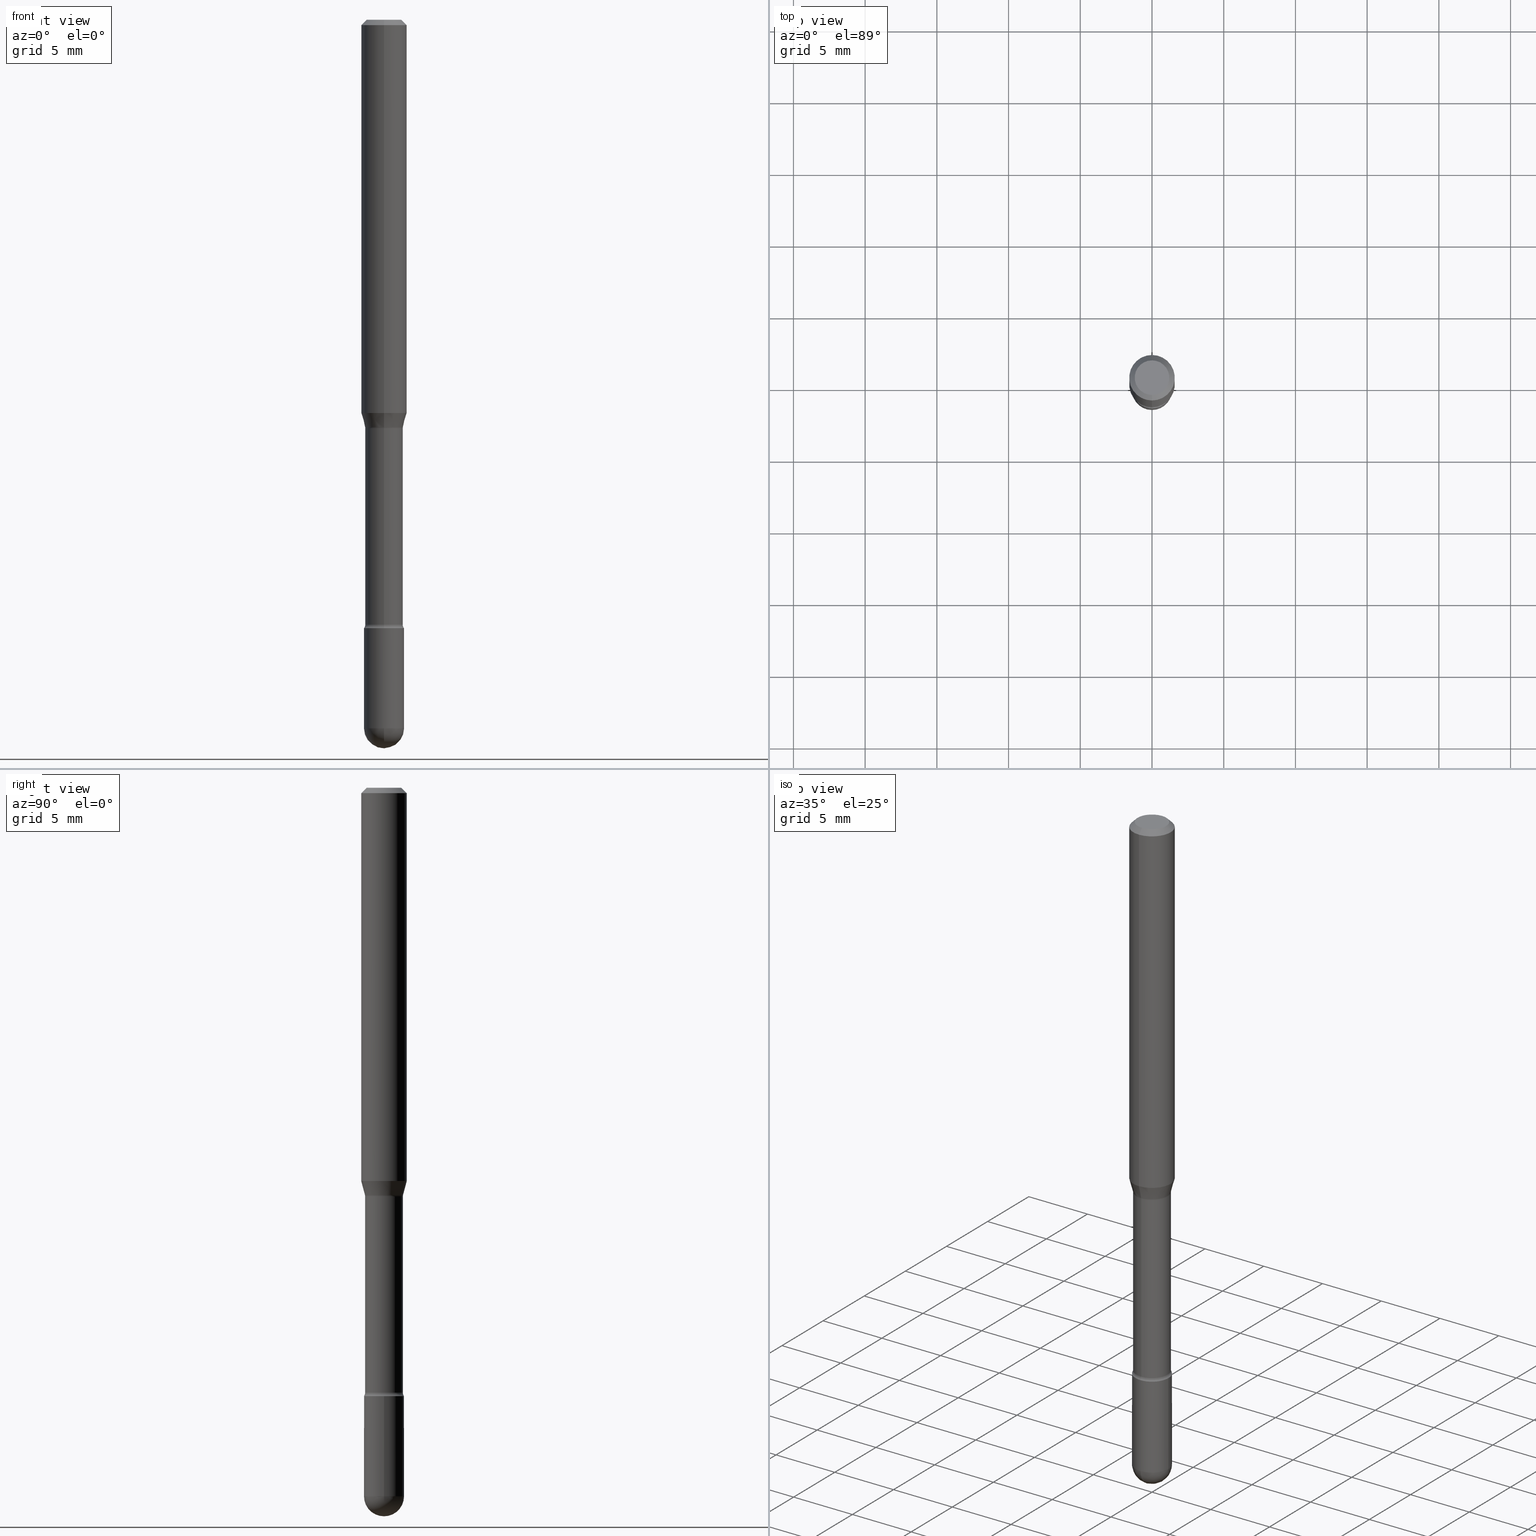
[diagram: canonical four-view strip — front | top / right | iso, engineering-drawing reading convention]
A machine part, canonical four-view strip (front | top / right | iso — engineering-drawing reading convention). The complete STEP part file that produces these views, byte-faithful:
ISO-10303-21;
HEADER;
FILE_DESCRIPTION (( 'STEP AP203' ),
    '1' );
FILE_NAME ('01608.STEP',
    '2024-04-09T20:09:02',
    ( '' ),
    ( '' ),
    'SwSTEP 2.0',
    'SolidWorks 2023',
    '' );
FILE_SCHEMA (( 'CONFIG_CONTROL_DESIGN' ));
ENDSEC;

DATA;
#1 = DIRECTION ( 'NONE',  ( 1.000000000000000000, -6.982962677686262766E-15, 0.000000000000000000 ) ) ;
#2 = DIRECTION ( 'NONE',  ( 1.000000000000000000, 0.000000000000000000, 0.000000000000000000 ) ) ;
#3 = CC_DESIGN_DATE_AND_TIME_ASSIGNMENT ( #237, #222, ( #188 ) ) ;
#4 = EDGE_CURVE ( 'NONE', #365, #81, #83, .T. ) ;
#5 = ORIENTED_EDGE ( 'NONE', *, *, #374, .F. ) ;
#6 = VECTOR ( 'NONE', #509, 39.37007874015748143 ) ;
#7 = APPLICATION_CONTEXT ( 'configuration controlled 3d designs of mechanical parts and assemblies' ) ;
#8 = APPROVAL_STATUS ( 'not_yet_approved' ) ;
#9 = DIRECTION ( 'NONE',  ( 1.000000000000000000, -6.982962677686262766E-15, 0.000000000000000000 ) ) ;
#10 = VERTEX_POINT ( 'NONE', #65 ) ;
#11 = AXIS2_PLACEMENT_3D ( 'NONE', #76, #375, #246 ) ;
#12 = PERSON_AND_ORGANIZATION_ROLE ( 'design_owner' ) ;
#13 = PERSON_AND_ORGANIZATION ( #191, #46 ) ;
#14 = ORIENTED_EDGE ( 'NONE', *, *, #391, .T. ) ;
#15 = CARTESIAN_POINT ( 'NONE',  ( 4.756436828030089694E-29, -6.790931204049916306E-15, -1.944999999999999618 ) ) ;
#16 = PERSON_AND_ORGANIZATION ( #191, #46 ) ;
#17 = DIRECTION ( 'NONE',  ( -6.982962677686265133E-15, -1.000000000000000000, 5.284038672464717026E-15 ) ) ;
#18 = ORIENTED_EDGE ( 'NONE', *, *, #391, .F. ) ;
#19 = COORDINATED_UNIVERSAL_TIME_OFFSET ( 5, 0, .BEHIND. ) ;
#20 = EDGE_LOOP ( 'NONE', ( #14, #486 ) ) ;
#21 = CIRCLE ( 'NONE', #79, 0.05221111260566397433 ) ;
#22 = DIRECTION ( 'NONE',  ( 6.982962677686265922E-15, 1.000000000000000000, -3.491634899894602075E-15 ) ) ;
#23 = ORIENTED_EDGE ( 'NONE', *, *, #286, .F. ) ;
#24 = CARTESIAN_POINT ( 'NONE',  ( -4.364351673553916201E-16, -0.06250000000000000000, 6.963005801346586436E-16 ) ) ;
#25 = ORIENTED_EDGE ( 'NONE', *, *, #451, .T. ) ;
#26 = ORIENTED_EDGE ( 'NONE', *, *, #444, .T. ) ;
#27 = AXIS2_PLACEMENT_3D ( 'NONE', #199, #249, #107 ) ;
#28 = EDGE_CURVE ( 'NONE', #503, #494, #262, .T. ) ;
#29 = FACE_OUTER_BOUND ( 'NONE', #97, .T. ) ;
#30 = ORIENTED_EDGE ( 'NONE', *, *, #504, .F. ) ;
#31 =( LENGTH_UNIT ( ) NAMED_UNIT ( * ) SI_UNIT ( $, .METRE. ) );
#32 = CYLINDRICAL_SURFACE ( 'NONE', #175, 0.05170000000000004453 ) ;
#33 = DIRECTION ( 'NONE',  ( -6.982962677686265922E-15, -1.000000000000000000, 3.483106191921935554E-15 ) ) ;
#34 = AXIS2_PLACEMENT_3D ( 'NONE', #507, #114, #252 ) ;
#35 = DIRECTION ( 'NONE',  ( 2.445361575076029644E-29, -3.491634899894602075E-15, -1.000000000000000000 ) ) ;
#36 = DIRECTION ( 'NONE',  ( -6.982962677686266711E-15, -1.000000000000000000, 4.966996352116842287E-15 ) ) ;
#37 = VERTEX_POINT ( 'NONE', #363 ) ;
#38 = DIRECTION ( 'NONE',  ( -1.000000000000000000, 7.105427357601001070E-15, -4.926315508542082329E-29 ) ) ;
#39 = MANIFOLD_SOLID_BREP ( 'Body-Move/Copy2[2]', #501 ) ;
#40 = CC_DESIGN_SECURITY_CLASSIFICATION ( #188, ( #429 ) ) ;
#41 = LINE ( 'NONE', #204, #326 ) ;
#42 = CARTESIAN_POINT ( 'NONE',  ( 4.756436828030090255E-29, -6.790931204049917095E-15, -1.944999999999999840 ) ) ;
#43 = CARTESIAN_POINT ( 'NONE',  ( 2.640241856761700178E-29, -3.769896732324770505E-15, -1.079693851278255678 ) ) ;
#44 = TOROIDAL_SURFACE ( 'NONE', #156, 0.06669999999999999540, 0.01499999999999998904 ) ;
#45 = FACE_OUTER_BOUND ( 'NONE', #177, .T. ) ;
#46 = ORGANIZATION ( 'UNSPECIFIED', 'UNSPECIFIED', '' ) ;
#47 = DIRECTION ( 'NONE',  ( -6.982962677686265922E-15, -1.000000000000000000, 3.483106191921935554E-15 ) ) ;
#48 = DATE_TIME_ROLE ( 'creation_date' ) ;
#49 = ORIENTED_EDGE ( 'NONE', *, *, #543, .F. ) ;
#50 = APPROVAL_ROLE ( '' ) ;
#51 = CYLINDRICAL_SURFACE ( 'NONE', #308, 0.06250000000000000000 ) ;
#52 = ORIENTED_EDGE ( 'NONE', *, *, #256, .F. ) ;
#53 = CIRCLE ( 'NONE', #214, 0.04749999999999999362 ) ;
#54 = PERSON_AND_ORGANIZATION_ROLE ( 'creator' ) ;
#55 = AXIS2_PLACEMENT_3D ( 'NONE', #479, #520, #2 ) ;
#56 = CARTESIAN_POINT ( 'NONE',  ( -1.169113584055446105E-44, 1.669184350826100908E-30, 4.780733988912460139E-16 ) ) ;
#57 = ORIENTED_EDGE ( 'NONE', *, *, #416, .F. ) ;
#58 = DIRECTION ( 'NONE',  ( -2.445361575076029644E-29, 3.491634899894602075E-15, 1.000000000000000000 ) ) ;
#59 = EDGE_LOOP ( 'NONE', ( #49, #26, #528, #23 ) ) ;
#60 = UNCERTAINTY_MEASURE_WITH_UNIT (LENGTH_MEASURE( 1.000000000000000082E-05 ), #453, 'distance_accuracy_value', 'NONE');
#61 = ORIENTED_EDGE ( 'NONE', *, *, #267, .F. ) ;
#62 = CARTESIAN_POINT ( 'NONE',  ( 3.790745495280543333E-16, 0.05169999999999428525, -1.660613307291703089 ) ) ;
#63 = CARTESIAN_POINT ( 'NONE',  ( 4.756436828030090255E-29, -6.790931204049917095E-15, -1.944999999999999840 ) ) ;
#64 = DIRECTION ( 'NONE',  ( -2.445361575076029644E-29, 3.491634899894602075E-15, 1.000000000000000000 ) ) ;
#65 = CARTESIAN_POINT ( 'NONE',  ( 0.05500000000000000028, -6.694915467231728877E-15, -1.944999999999999618 ) ) ;
#66 = VERTEX_POINT ( 'NONE', #369 ) ;
#67 = AXIS2_PLACEMENT_3D ( 'NONE', #243, #331, #498 ) ;
#68 = LINE ( 'NONE', #414, #228 ) ;
#69 = ORIENTED_EDGE ( 'NONE', *, *, #514, .T. ) ;
#70 = CIRCLE ( 'NONE', #135, 0.05500000000000000028 ) ;
#71 = EDGE_CURVE ( 'NONE', #86, #134, #99, .T. ) ;
#72 = CARTESIAN_POINT ( 'NONE',  ( 4.440892098500625669E-16, 0.06250000000000000000, 2.598462176478334336E-16 ) ) ;
#73 = LINE ( 'NONE', #418, #390 ) ;
#74 = VERTEX_POINT ( 'NONE', #490 ) ;
#75 = CC_DESIGN_PERSON_AND_ORGANIZATION_ASSIGNMENT ( #387, #167, ( #434 ) ) ;
#76 = CARTESIAN_POINT ( 'NONE',  ( 2.640241856761700178E-29, -3.769896732324770505E-15, -1.079693851278255678 ) ) ;
#77 = DIRECTION ( 'NONE',  ( -6.982962677686265133E-15, -1.000000000000000000, 3.491634899894601680E-15 ) ) ;
#78 = VERTEX_POINT ( 'NONE', #98 ) ;
#79 = AXIS2_PLACEMENT_3D ( 'NONE', #559, #162, #164 ) ;
#80 = DIRECTION ( 'NONE',  ( -6.982962677686265922E-15, -1.000000000000000000, 3.491634899894602075E-15 ) ) ;
#81 = VERTEX_POINT ( 'NONE', #282 ) ;
#82 = FACE_OUTER_BOUND ( 'NONE', #287, .T. ) ;
#83 = CIRCLE ( 'NONE', #532, 0.01499999999999997689 ) ;
#84 = DIRECTION ( 'NONE',  ( -2.445361575076029644E-29, 3.491634899894602075E-15, 1.000000000000000000 ) ) ;
#85 = DIRECTION ( 'NONE',  ( -2.445468806185136597E-29, 3.491481338843145583E-15, 1.000000000000000000 ) ) ;
#86 = VERTEX_POINT ( 'NONE', #62 ) ;
#87 = ADVANCED_FACE ( 'NONE', ( #540 ), #142, .T. ) ;
#88 = EDGE_LOOP ( 'NONE', ( #310, #332, #25, #279 ) ) ;
#89 = ADVANCED_FACE ( 'NONE', ( #82 ), #161, .T. ) ;
#90 = PRODUCT_DEFINITION_SHAPE ( 'NONE', 'NONE',  #434 ) ;
#91 = DIRECTION ( 'NONE',  ( -2.445468806185136877E-29, 3.491481338843145188E-15, 1.000000000000000000 ) ) ;
#92 = ORIENTED_EDGE ( 'NONE', *, *, #4, .F. ) ;
#93 = CARTESIAN_POINT ( 'NONE',  ( -4.287811248607203282E-16, -0.06250000000000005551, -0.01499999999999986587 ) ) ;
#94 = AXIS2_PLACEMENT_3D ( 'NONE', #393, #171, #47 ) ;
#95 = ORIENTED_EDGE ( 'NONE', *, *, #315, .F. ) ;
#96 = FACE_OUTER_BOUND ( 'NONE', #415, .T. ) ;
#97 = EDGE_LOOP ( 'NONE', ( #193, #480, #276, #254 ) ) ;
#98 = CARTESIAN_POINT ( 'NONE',  ( -3.907985046680076246E-16, -0.05500000000000680733, -1.944999999999999396 ) ) ;
#99 = CIRCLE ( 'NONE', #335, 0.01499999999999997689 ) ;
#100 = ADVANCED_FACE ( 'NONE', ( #425 ), #281, .T. ) ;
#101 = DIRECTION ( 'NONE',  ( 1.000000000000000000, -6.982962677686262766E-15, 0.000000000000000000 ) ) ;
#102 = AXIS2_PLACEMENT_3D ( 'NONE', #306, #270, #396 ) ;
#103 = ORIENTED_EDGE ( 'NONE', *, *, #242, .T. ) ;
#104 = CC_DESIGN_APPROVAL ( #377, ( #434 ) ) ;
#105 = DIRECTION ( 'NONE',  ( -2.445361575076029644E-29, 3.491634899894602075E-15, 1.000000000000000000 ) ) ;
#106 = ORIENTED_EDGE ( 'NONE', *, *, #352, .F. ) ;
#107 = DIRECTION ( 'NONE',  ( 6.982962677686266711E-15, 1.000000000000000000, -4.966996352116838343E-15 ) ) ;
#108 = VERTEX_POINT ( 'NONE', #116 ) ;
#109 = CARTESIAN_POINT ( 'NONE',  ( -3.773273898774340269E-16, -0.04749999999999999362, 8.311291982339236009E-17 ) ) ;
#110 = ORIENTED_EDGE ( 'NONE', *, *, #28, .F. ) ;
#111 = CIRCLE ( 'NONE', #137, 0.05170000000000008616 ) ;
#112 = AXIS2_PLACEMENT_3D ( 'NONE', #152, #557, #340 ) ;
#113 = DIRECTION ( 'NONE',  ( -2.445361575076029644E-29, 3.491634899894602075E-15, 1.000000000000000000 ) ) ;
#114 = DIRECTION ( 'NONE',  ( -2.445361575076029644E-29, 3.491634899894602075E-15, 1.000000000000000000 ) ) ;
#115 = CARTESIAN_POINT ( 'NONE',  ( 3.907985046680957798E-16, 0.05499999999999415773, -1.670000000000000151 ) ) ;
#116 = CARTESIAN_POINT ( 'NONE',  ( -3.610191704363525413E-16, -0.05170000000000391643, -1.121974787463810408 ) ) ;
#117 = EDGE_LOOP ( 'NONE', ( #197, #194, #110, #183 ) ) ;
#118 = VECTOR ( 'NONE', #64, 39.37007874015748143 ) ;
#119 = APPROVAL_PERSON_ORGANIZATION ( #432, #377, #227 ) ;
#120 = DIRECTION ( 'NONE',  ( -2.445361575076029644E-29, 3.491634899894602075E-15, 1.000000000000000000 ) ) ;
#121 = EDGE_CURVE ( 'NONE', #365, #108, #337, .T. ) ;
#122 = DIRECTION ( 'NONE',  ( 1.000000000000000000, -6.982962677686266711E-15, 4.876176775795935793E-29 ) ) ;
#123 = ORIENTED_EDGE ( 'NONE', *, *, #121, .F. ) ;
#124 = CIRCLE ( 'NONE', #448, 0.05169999999999999596 ) ;
#125 = APPLICATION_PROTOCOL_DEFINITION ( 'international standard', 'config_control_design', 1994, #338 ) ;
#126 = AXIS2_PLACEMENT_3D ( 'NONE', #251, #499, #291 ) ;
#127 = CARTESIAN_POINT ( 'NONE',  ( 0.05500000000000000028, -3.840629472727446888E-16, 2.681897226687764826E-30 ) ) ;
#128 = EDGE_LOOP ( 'NONE', ( #106, #523, #537, #431 ) ) ;
#129 = CARTESIAN_POINT ( 'NONE',  ( -3.645882506857991305E-16, -0.05221111260566788093, -1.118092501787272708 ) ) ;
#130 = ORIENTED_EDGE ( 'NONE', *, *, #441, .F. ) ;
#131 = APPROVAL_ROLE ( '' ) ;
#132 = TOROIDAL_SURFACE ( 'NONE', #263, 0.06670000000000006479, 0.01499999999999997863 ) ;
#133 = DIRECTION ( 'NONE',  ( -2.445361575076029644E-29, 3.491634899894602075E-15, 1.000000000000000000 ) ) ;
#134 = VERTEX_POINT ( 'NONE', #115 ) ;
#135 = AXIS2_PLACEMENT_3D ( 'NONE', #231, #85, #9 ) ;
#136 = PERSON_AND_ORGANIZATION_ROLE ( 'classification_officer' ) ;
#137 = AXIS2_PLACEMENT_3D ( 'NONE', #409, #105, #545 ) ;
#138 = FACE_OUTER_BOUND ( 'NONE', #128, .T. ) ;
#139 = EDGE_LOOP ( 'NONE', ( #103, #477, #130, #238 ) ) ;
#140 = CARTESIAN_POINT ( 'NONE',  ( 4.739320047520278121E-16, 0.06669999999999426388, -1.660613307291703089 ) ) ;
#141 = FACE_OUTER_BOUND ( 'NONE', #397, .T. ) ;
#142 = CYLINDRICAL_SURFACE ( 'NONE', #67, 0.06250000000000000000 ) ;
#143 = CLOSED_SHELL ( 'NONE', ( #89, #466, #405, #392, #149 ) ) ;
#144 = EDGE_CURVE ( 'NONE', #81, #134, #223, .T. ) ;
#145 = DIRECTION ( 'NONE',  ( 1.000000000000000000, -6.982962677686262766E-15, 0.000000000000000000 ) ) ;
#146 = AXIS2_PLACEMENT_3D ( 'NONE', #471, #346, #1 ) ;
#147 = DIRECTION ( 'NONE',  ( 1.000000000000000000, -7.105427357601001070E-15, 4.926317389122583750E-29 ) ) ;
#148 = VECTOR ( 'NONE', #241, 39.37007874015748143 ) ;
#149 = ADVANCED_FACE ( 'NONE', ( #427 ), #555, .T. ) ;
#150 = ORIENTED_EDGE ( 'NONE', *, *, #519, .T. ) ;
#151 = CC_DESIGN_PERSON_AND_ORGANIZATION_ASSIGNMENT ( #13, #54, ( #429 ) ) ;
#152 = CARTESIAN_POINT ( 'NONE',  ( 2.743754344068947711E-29, -3.917354033082399546E-15, -1.121974787463810630 ) ) ;
#153 = ADVANCED_FACE ( 'NONE', ( #45 ), #380, .F. ) ;
#154 = DIRECTION ( 'NONE',  ( -1.807323732225318306E-15, -0.2588190451025164651, 0.9659258262890694224 ) ) ;
#155 = VERTEX_POINT ( 'NONE', #464 ) ;
#156 = AXIS2_PLACEMENT_3D ( 'NONE', #420, #341, #344 ) ;
#157 = PLANE ( 'NONE',  #554 ) ;
#158 = DIRECTION ( 'NONE',  ( -2.445468806185136597E-29, 3.491481338843145583E-15, 1.000000000000000000 ) ) ;
#159 = CIRCLE ( 'NONE', #317, 0.05500000000000000028 ) ;
#160 = AXIS2_PLACEMENT_3D ( 'NONE', #360, #233, #400 ) ;
#161 = CYLINDRICAL_SURFACE ( 'NONE', #290, 0.05500000000000000028 ) ;
#162 = DIRECTION ( 'NONE',  ( -2.445361575076029644E-29, 3.491634899894602075E-15, 1.000000000000000000 ) ) ;
#163 = DIRECTION ( 'NONE',  ( -2.445361575076029644E-29, 3.491634899894602075E-15, 1.000000000000000000 ) ) ;
#164 = DIRECTION ( 'NONE',  ( -6.982962677686266711E-15, -1.000000000000000000, 2.616155696869698836E-15 ) ) ;
#165 = CARTESIAN_POINT ( 'NONE',  ( 2.734140441251224766E-29, -3.903970800550909754E-15, -1.118092501787272930 ) ) ;
#166 = VECTOR ( 'NONE', #538, 39.37007874015748143 ) ;
#167 = PERSON_AND_ORGANIZATION_ROLE ( 'creator' ) ;
#168 = ADVANCED_FACE ( 'NONE', ( #303 ), #403, .T. ) ;
#169 = FACE_OUTER_BOUND ( 'NONE', #456, .T. ) ;
#170 = APPROVAL ( #529, 'UNSPECIFIED' ) ;
#171 = DIRECTION ( 'NONE',  ( -2.445361575076029644E-29, 3.491634899894602075E-15, 1.000000000000000000 ) ) ;
#172 = AXIS2_PLACEMENT_3D ( 'NONE', #424, #213, #80 ) ;
#173 = ORIENTED_EDGE ( 'NONE', *, *, #205, .F. ) ;
#174 = APPROVAL_DATE_TIME ( #314, #170 ) ;
#175 = AXIS2_PLACEMENT_3D ( 'NONE', #548, #113, #378 ) ;
#176 = ADVANCED_FACE ( 'NONE', ( #467 ), #348, .F. ) ;
#177 = EDGE_LOOP ( 'NONE', ( #247, #521 ) ) ;
#178 = PRODUCT ( '01608', '01608', '', ( #216 ) ) ;
#179 = ADVANCED_FACE ( 'NONE', ( #169 ), #44, .F. ) ;
#180 = COORDINATED_UNIVERSAL_TIME_OFFSET ( 5, 0, .BEHIND. ) ;
#181 = PERSON_AND_ORGANIZATION_ROLE ( 'design_supplier' ) ;
#182 = CARTESIAN_POINT ( 'NONE',  ( -4.364351673553652919E-16, -0.06250000000000377476, -1.079693851278255456 ) ) ;
#183 = ORIENTED_EDGE ( 'NONE', *, *, #488, .F. ) ;
#184 = AXIS2_PLACEMENT_3D ( 'NONE', #43, #84, #210 ) ;
#185 = EDGE_LOOP ( 'NONE', ( #373, #549, #411, #52 ) ) ;
#186 = CARTESIAN_POINT ( 'NONE',  ( -4.364351673553912750E-16, -0.06250000000000005551, -0.01499999999999986587 ) ) ;
#187 = ADVANCED_FACE ( 'NONE', ( #562 ), #255, .T. ) ;
#188 = SECURITY_CLASSIFICATION ( '', '', #438 ) ;
#189 = FACE_OUTER_BOUND ( 'NONE', #20, .T. ) ;
#190 = ORIENTED_EDGE ( 'NONE', *, *, #225, .F. ) ;
#191 = PERSON ( 'UNSPECIFIED', 'UNSPECIFIED', 'UNSPECIFIED', ('UNSPECIFIED'), ('UNSPECIFIED'), ('UNSPECIFIED') ) ;
#192 = CARTESIAN_POINT ( 'NONE',  ( -3.610191704363399195E-16, -0.05170000000000588014, -1.660613307291702645 ) ) ;
#193 = ORIENTED_EDGE ( 'NONE', *, *, #384, .F. ) ;
#194 = ORIENTED_EDGE ( 'NONE', *, *, #560, .T. ) ;
#195 = AXIS2_PLACEMENT_3D ( 'NONE', #446, #541, #33 ) ;
#196 = EDGE_CURVE ( 'NONE', #155, #328, #386, .T. ) ;
#197 = ORIENTED_EDGE ( 'NONE', *, *, #441, .T. ) ;
#198 = CIRCLE ( 'NONE', #230, 0.05500000000000000028 ) ;
#199 = CARTESIAN_POINT ( 'NONE',  ( 4.756436828030090255E-29, -6.790931204049917095E-15, -1.944999999999999840 ) ) ;
#200 = ORIENTED_EDGE ( 'NONE', *, *, #267, .T. ) ;
#201 = DIRECTION ( 'NONE',  ( -6.982962677686265133E-15, -1.000000000000000000, 3.491634899894602469E-15 ) ) ;
#202 = CARTESIAN_POINT ( 'NONE',  ( 4.756436828030090255E-29, -6.790931204049917095E-15, -1.944999999999999840 ) ) ;
#203 = DIMENSIONAL_EXPONENTS ( 1.000000000000000000, 0.000000000000000000, 0.000000000000000000, 0.000000000000000000, 0.000000000000000000, 0.000000000000000000, 0.000000000000000000 ) ;
#204 = CARTESIAN_POINT ( 'NONE',  ( -0.05500000000000000028, 3.907985046680551042E-16, -2.705414299640198362E-30 ) ) ;
#205 = EDGE_CURVE ( 'NONE', #354, #268, #41, .T. ) ;
#206 = DIRECTION ( 'NONE',  ( -7.105427357601001070E-15, -1.000000000000000000, 0.000000000000000000 ) ) ;
#207 = CC_DESIGN_APPROVAL ( #350, ( #188 ) ) ;
#208 =( NAMED_UNIT ( * ) PLANE_ANGLE_UNIT ( ) SI_UNIT ( $, .RADIAN. ) );
#209 = DESIGN_CONTEXT ( 'detailed design', #338, 'design' ) ;
#210 = DIRECTION ( 'NONE',  ( -6.982962677686265922E-15, -1.000000000000000000, 4.370956789862821150E-15 ) ) ;
#211 = ADVANCED_FACE ( 'NONE', ( #264 ), #132, .F. ) ;
#212 = APPROVAL_DATE_TIME ( #426, #377 ) ;
#213 = DIRECTION ( 'NONE',  ( -2.445361575076029644E-29, 3.491634899894602075E-15, 1.000000000000000000 ) ) ;
#214 = AXIS2_PLACEMENT_3D ( 'NONE', #534, #364, #539 ) ;
#215 = AXIS2_PLACEMENT_3D ( 'NONE', #15, #465, #253 ) ;
#216 = MECHANICAL_CONTEXT ( 'NONE', #7, 'mechanical' ) ;
#217 = CARTESIAN_POINT ( 'NONE',  ( 4.075357388645938693E-16, 0.05221111260566007467, -1.118092501787272930 ) ) ;
#218 = CARTESIAN_POINT ( 'NONE',  ( 3.840629472727447874E-16, 0.04749999999999999362, -2.485923956665948360E-16 ) ) ;
#219 = ADVANCED_BREP_SHAPE_REPRESENTATION ( '01608', ( #408, #39, #55 ), #544 ) ;
#220 = CARTESIAN_POINT ( 'NONE',  ( -0.05500000000000000028, -5.920054015290930021E-15, -1.669999999999999929 ) ) ;
#221 = ORIENTED_EDGE ( 'NONE', *, *, #525, .T. ) ;
#222 = DATE_TIME_ROLE ( 'classification_date' ) ;
#223 = CIRCLE ( 'NONE', #34, 0.05500000000000000028 ) ;
#224 = DIRECTION ( 'NONE',  ( -2.445361575076029644E-29, 3.491634899894602075E-15, 1.000000000000000000 ) ) ;
#225 = EDGE_CURVE ( 'NONE', #376, #66, #474, .T. ) ;
#226 = EDGE_LOOP ( 'NONE', ( #240, #307, #535, #489 ) ) ;
#227 = APPROVAL_ROLE ( '' ) ;
#228 = VECTOR ( 'NONE', #154, 39.37007874015748143 ) ;
#229 = APPROVAL_DATE_TIME ( #395, #350 ) ;
#230 = AXIS2_PLACEMENT_3D ( 'NONE', #367, #324, #145 ) ;
#231 = CARTESIAN_POINT ( 'NONE',  ( 4.756436828030089694E-29, -6.790931204049916306E-15, -1.944999999999999618 ) ) ;
#232 = ORIENTED_EDGE ( 'NONE', *, *, #242, .F. ) ;
#233 = DIRECTION ( 'NONE',  ( -2.445361575076029644E-29, 3.491634899894602075E-15, 1.000000000000000000 ) ) ;
#234 = DIRECTION ( 'NONE',  ( -6.982962677686266711E-15, -1.000000000000000000, 3.491634899894602863E-15 ) ) ;
#235 = ORIENTED_EDGE ( 'NONE', *, *, #366, .F. ) ;
#236 = CARTESIAN_POINT ( 'NONE',  ( 4.440892098500891416E-16, 0.06249999999999995143, -0.01500000000000030129 ) ) ;
#237 = DATE_AND_TIME ( #356, #283 ) ;
#238 = ORIENTED_EDGE ( 'NONE', *, *, #451, .F. ) ;
#239 = LOCAL_TIME ( 16, 9, 2.000000000000000000, #401 ) ;
#240 = ORIENTED_EDGE ( 'NONE', *, *, #71, .F. ) ;
#241 = DIRECTION ( 'NONE',  ( -4.851104656540964275E-15, -0.7071067811865500152, -0.7071067811865450192 ) ) ;
#242 = EDGE_CURVE ( 'NONE', #273, #250, #564, .T. ) ;
#243 = CARTESIAN_POINT ( 'NONE',  ( -1.169113584055446105E-44, 1.669184350826100908E-30, 4.780733988912460139E-16 ) ) ;
#244 = ORIENTED_EDGE ( 'NONE', *, *, #286, .T. ) ;
#245 = EDGE_CURVE ( 'NONE', #66, #354, #553, .T. ) ;
#246 = DIRECTION ( 'NONE',  ( -6.982962677686265922E-15, -1.000000000000000000, 4.370956789862821150E-15 ) ) ;
#247 = ORIENTED_EDGE ( 'NONE', *, *, #144, .F. ) ;
#248 = AXIS2_PLACEMENT_3D ( 'NONE', #63, #491, #312 ) ;
#249 = DIRECTION ( 'NONE',  ( -1.000000000000000000, 6.982962677686266711E-15, -4.883557194083112901E-29 ) ) ;
#250 = VERTEX_POINT ( 'NONE', #217 ) ;
#251 = CARTESIAN_POINT ( 'NONE',  ( 4.739320047520142042E-16, 0.06669999999999608187, -1.121974787463811074 ) ) ;
#252 = DIRECTION ( 'NONE',  ( -6.982962677686266711E-15, -1.000000000000000000, 4.966996352116842287E-15 ) ) ;
#253 = DIRECTION ( 'NONE',  ( 1.000000000000000000, -6.982962677686262766E-15, 0.000000000000000000 ) ) ;
#254 = ORIENTED_EDGE ( 'NONE', *, *, #347, .F. ) ;
#255 = CONICAL_SURFACE ( 'NONE', #473, 0.06250000000000000000, 0.7853981633974483900 ) ;
#256 = EDGE_CURVE ( 'NONE', #494, #503, #495, .T. ) ;
#257 = DIRECTION ( 'NONE',  ( 6.982962677686265922E-15, 1.000000000000000000, -3.483106191921935554E-15 ) ) ;
#258 = CIRCLE ( 'NONE', #458, 0.05500000000000004191 ) ;
#259 = DIRECTION ( 'NONE',  ( -6.982962677686265922E-15, -1.000000000000000000, 3.491634899894601286E-15 ) ) ;
#260 = CARTESIAN_POINT ( 'NONE',  ( 0.000000000000000000, 0.000000000000000000, 0.000000000000000000 ) ) ;
#261 = CARTESIAN_POINT ( 'NONE',  ( -3.610191704363802007E-16, -0.05170000000000004453, 6.585909232157971509E-16 ) ) ;
#262 = CIRCLE ( 'NONE', #195, 0.06250000000000000000 ) ;
#263 = AXIS2_PLACEMENT_3D ( 'NONE', #512, #300, #428 ) ;
#264 = FACE_OUTER_BOUND ( 'NONE', #226, .T. ) ;
#265 = AXIS2_PLACEMENT_3D ( 'NONE', #558, #469, #385 ) ;
#266 = CARTESIAN_POINT ( 'NONE',  ( 4.083932906329177803E-29, -5.830773835868053056E-15, -1.669999999999999929 ) ) ;
#267 = EDGE_CURVE ( 'NONE', #268, #74, #159, .T. ) ;
#268 = VERTEX_POINT ( 'NONE', #220 ) ;
#269 = CALENDAR_DATE ( 2024, 9, 4 ) ;
#270 = DIRECTION ( 'NONE',  ( -1.000000000000000000, 6.982962677686265922E-15, -4.883557194083112340E-29 ) ) ;
#271 = ORIENTED_EDGE ( 'NONE', *, *, #315, .T. ) ;
#272 = APPROVAL_STATUS ( 'not_yet_approved' ) ;
#273 = VERTEX_POINT ( 'NONE', #129 ) ;
#274 = DIRECTION ( 'NONE',  ( 2.445361575076029644E-29, -3.491634899894602075E-15, -1.000000000000000000 ) ) ;
#275 = COORDINATED_UNIVERSAL_TIME_OFFSET ( 5, 0, .BEHIND. ) ;
#276 = ORIENTED_EDGE ( 'NONE', *, *, #121, .T. ) ;
#277 = EDGE_CURVE ( 'NONE', #10, #74, #482, .T. ) ;
#278 = LINE ( 'NONE', #327, #118 ) ;
#279 = ORIENTED_EDGE ( 'NONE', *, *, #196, .F. ) ;
#280 = LINE ( 'NONE', #24, #166 ) ;
#281 = CONICAL_SURFACE ( 'NONE', #297, 0.05221111260566397433, 0.2617993877991485197 ) ;
#282 = CARTESIAN_POINT ( 'NONE',  ( -3.840629472727037666E-16, -0.05500000000000581507, -1.669999999999999707 ) ) ;
#283 = LOCAL_TIME ( 16, 9, 2.000000000000000000, #19 ) ;
#284 = DIRECTION ( 'NONE',  ( -2.445361575076029644E-29, 3.491634899894602075E-15, 1.000000000000000000 ) ) ;
#285 = DIRECTION ( 'NONE',  ( -6.982962677686270655E-15, -1.000000000000000000, 0.000000000000000000 ) ) ;
#286 = EDGE_CURVE ( 'NONE', #273, #108, #522, .T. ) ;
#287 = EDGE_LOOP ( 'NONE', ( #358, #433, #323, #289, #531 ) ) ;
#288 = DIRECTION ( 'NONE',  ( 1.000000000000000000, -6.982962677686265922E-15, 4.876176775795935793E-29 ) ) ;
#289 = ORIENTED_EDGE ( 'NONE', *, *, #277, .F. ) ;
#290 = AXIS2_PLACEMENT_3D ( 'NONE', #260, #158, #516 ) ;
#291 = DIRECTION ( 'NONE',  ( 7.105427357601001859E-15, 1.000000000000000000, 0.000000000000000000 ) ) ;
#292 = ORIENTED_EDGE ( 'NONE', *, *, #526, .T. ) ;
#293 = DIRECTION ( 'NONE',  ( -2.438088387897960049E-29, 3.491481338843145188E-15, 1.000000000000000000 ) ) ;
#294 = CARTESIAN_POINT ( 'NONE',  ( 0.000000000000000000, 0.000000000000000000, 0.000000000000000000 ) ) ;
#295 = DIRECTION ( 'NONE',  ( -2.445361575076029644E-29, 3.491634899894602075E-15, 1.000000000000000000 ) ) ;
#296 = DIRECTION ( 'NONE',  ( -2.445361575076029644E-29, 3.491634899894602075E-15, 1.000000000000000000 ) ) ;
#297 = AXIS2_PLACEMENT_3D ( 'NONE', #518, #120, #339 ) ;
#298 = DIRECTION ( 'NONE',  ( 1.839019923739588088E-15, 0.2588190451025232375, 0.9659258262890676461 ) ) ;
#299 = AXIS2_PLACEMENT_3D ( 'NONE', #322, #445, #22 ) ;
#300 = DIRECTION ( 'NONE',  ( -2.445361575076029644E-29, 3.491634899894602075E-15, 1.000000000000000000 ) ) ;
#301 = AXIS2_PLACEMENT_3D ( 'NONE', #336, #455, #201 ) ;
#302 = DIRECTION ( 'NONE',  ( -2.445468806185136877E-29, 3.491481338843145188E-15, 1.000000000000000000 ) ) ;
#303 = FACE_OUTER_BOUND ( 'NONE', #88, .T. ) ;
#304 = ADVANCED_FACE ( 'NONE', ( #476 ), #51, .T. ) ;
#305 = SHAPE_DEFINITION_REPRESENTATION ( #90, #219 ) ;
#306 = CARTESIAN_POINT ( 'NONE',  ( -4.657636106016465025E-16, -0.06670000000000392282, -1.121974787463810408 ) ) ;
#307 = ORIENTED_EDGE ( 'NONE', *, *, #389, .F. ) ;
#308 = AXIS2_PLACEMENT_3D ( 'NONE', #56, #224, #259 ) ;
#309 = CALENDAR_DATE ( 2024, 9, 4 ) ;
#310 = ORIENTED_EDGE ( 'NONE', *, *, #355, .F. ) ;
#311 = ORIENTED_EDGE ( 'NONE', *, *, #444, .F. ) ;
#312 = DIRECTION ( 'NONE',  ( 6.982962677686266711E-15, 1.000000000000000000, -4.966996352116838343E-15 ) ) ;
#313 = AXIS2_PLACEMENT_3D ( 'NONE', #165, #295, #388 ) ;
#314 = DATE_AND_TIME ( #269, #478 ) ;
#315 = EDGE_CURVE ( 'NONE', #354, #78, #70, .T. ) ;
#316 = ORIENTED_EDGE ( 'NONE', *, *, #389, .T. ) ;
#317 = AXIS2_PLACEMENT_3D ( 'NONE', #266, #481, #484 ) ;
#318 = LINE ( 'NONE', #93, #148 ) ;
#319 = AXIS2_PLACEMENT_3D ( 'NONE', #333, #502, #101 ) ;
#320 = SPHERICAL_SURFACE ( 'NONE', #248, 0.05500000000000004191 ) ;
#321 = CALENDAR_DATE ( 2024, 9, 4 ) ;
#322 = CARTESIAN_POINT ( 'NONE',  ( 3.316907271900976096E-16, 0.04749999999999999362, 3.181417273982887005E-17 ) ) ;
#323 = ORIENTED_EDGE ( 'NONE', *, *, #514, .F. ) ;
#324 = DIRECTION ( 'NONE',  ( -2.445468806185136597E-29, 3.491481338843145583E-15, 1.000000000000000000 ) ) ;
#325 = DIRECTION ( 'NONE',  ( 7.105427357601006592E-15, 1.000000000000000000, 0.000000000000000000 ) ) ;
#326 = VECTOR ( 'NONE', #302, 39.37007874015748143 ) ;
#327 = CARTESIAN_POINT ( 'NONE',  ( 3.673505943879720139E-16, 0.05170000000000004453, 2.975558745666949756E-16 ) ) ;
#328 = VERTEX_POINT ( 'NONE', #182 ) ;
#329 = CC_DESIGN_DATE_AND_TIME_ASSIGNMENT ( #533, #48, ( #434 ) ) ;
#330 = CIRCLE ( 'NONE', #160, 0.05169999999999999596 ) ;
#331 = DIRECTION ( 'NONE',  ( -2.445361575076029644E-29, 3.491634899894602075E-15, 1.000000000000000000 ) ) ;
#332 = ORIENTED_EDGE ( 'NONE', *, *, #543, .T. ) ;
#333 = CARTESIAN_POINT ( 'NONE',  ( 4.756436828030089694E-29, -6.790931204049916306E-15, -1.944999999999999618 ) ) ;
#334 = ORIENTED_EDGE ( 'NONE', *, *, #416, .T. ) ;
#335 = AXIS2_PLACEMENT_3D ( 'NONE', #140, #147, #325 ) ;
#336 = CARTESIAN_POINT ( 'NONE',  ( -1.169113584055446105E-44, 1.669184350826100908E-30, 4.780733988912460139E-16 ) ) ;
#337 = LINE ( 'NONE', #261, #6 ) ;
#338 = APPLICATION_CONTEXT ( 'configuration controlled 3d designs of mechanical parts and assemblies' ) ;
#339 = DIRECTION ( 'NONE',  ( -6.982962677686266711E-15, -1.000000000000000000, 2.616155696869698836E-15 ) ) ;
#340 = DIRECTION ( 'NONE',  ( -6.982962677686265133E-15, -1.000000000000000000, 3.491634899894601680E-15 ) ) ;
#341 = DIRECTION ( 'NONE',  ( -2.445361575076029644E-29, 3.491634899894602075E-15, 1.000000000000000000 ) ) ;
#342 = AXIS2_PLACEMENT_3D ( 'NONE', #294, #383, #122 ) ;
#343 = LINE ( 'NONE', #72, #536 ) ;
#344 = DIRECTION ( 'NONE',  ( -6.982962677686265133E-15, -1.000000000000000000, 3.491634899894601680E-15 ) ) ;
#345 = COORDINATED_UNIVERSAL_TIME_OFFSET ( 5, 0, .BEHIND. ) ;
#346 = DIRECTION ( 'NONE',  ( -2.445468806185136597E-29, 3.491481338843145583E-15, 1.000000000000000000 ) ) ;
#347 = EDGE_CURVE ( 'NONE', #37, #108, #124, .T. ) ;
#348 = TOROIDAL_SURFACE ( 'NONE', #561, 0.06670000000000006479, 0.01499999999999997863 ) ;
#349 = PERSON_AND_ORGANIZATION ( #191, #46 ) ;
#350 = APPROVAL ( #272, 'UNSPECIFIED' ) ;
#351 = EDGE_LOOP ( 'NONE', ( #316, #406, #435, #123 ) ) ;
#352 = EDGE_CURVE ( 'NONE', #376, #78, #258, .T. ) ;
#353 = AXIS2_PLACEMENT_3D ( 'NONE', #421, #296, #36 ) ;
#354 = VERTEX_POINT ( 'NONE', #382 ) ;
#355 = EDGE_CURVE ( 'NONE', #250, #155, #556, .T. ) ;
#356 = CALENDAR_DATE ( 2024, 9, 4 ) ;
#357 = VERTEX_POINT ( 'NONE', #218 ) ;
#358 = ORIENTED_EDGE ( 'NONE', *, *, #245, .T. ) ;
#359 = CIRCLE ( 'NONE', #370, 0.05170000000000008616 ) ;
#360 = CARTESIAN_POINT ( 'NONE',  ( 2.743634033468097732E-29, -3.917526324710470150E-15, -1.121974787463810630 ) ) ;
#361 = LOCAL_TIME ( 16, 9, 2.000000000000000000, #180 ) ;
#362 = ADVANCED_FACE ( 'NONE', ( #189 ), #493, .F. ) ;
#363 = CARTESIAN_POINT ( 'NONE',  ( 3.673505943880125909E-16, 0.05169999999999608242, -1.121974787463810630 ) ) ;
#364 = DIRECTION ( 'NONE',  ( -2.445361575076029644E-29, 3.491634899894602075E-15, 1.000000000000000000 ) ) ;
#365 = VERTEX_POINT ( 'NONE', #192 ) ;
#366 = EDGE_CURVE ( 'NONE', #440, #357, #53, .T. ) ;
#367 = CARTESIAN_POINT ( 'NONE',  ( 4.083932906329177803E-29, -5.830773835868053056E-15, -1.669999999999999929 ) ) ;
#368 = FACE_OUTER_BOUND ( 'NONE', #443, .T. ) ;
#369 = CARTESIAN_POINT ( 'NONE',  ( 3.840629472727923656E-16, 0.05499999999999323486, -1.944999999999999840 ) ) ;
#370 = AXIS2_PLACEMENT_3D ( 'NONE', #497, #284, #17 ) ;
#371 = AXIS2_PLACEMENT_3D ( 'NONE', #439, #58, #234 ) ;
#372 = CARTESIAN_POINT ( 'NONE',  ( 4.893289319665516092E-29, -6.979594898988634750E-15, -2.000000000000000000 ) ) ;
#373 = ORIENTED_EDGE ( 'NONE', *, *, #560, .F. ) ;
#374 = EDGE_CURVE ( 'NONE', #86, #365, #359, .T. ) ;
#375 = DIRECTION ( 'NONE',  ( -2.445361575076029644E-29, 3.491634899894602075E-15, 1.000000000000000000 ) ) ;
#376 = VERTEX_POINT ( 'NONE', #372 ) ;
#377 = APPROVAL ( #8, 'UNSPECIFIED' ) ;
#378 = DIRECTION ( 'NONE',  ( -6.982962677686265133E-15, -1.000000000000000000, 3.491634899894602469E-15 ) ) ;
#379 = DIRECTION ( 'NONE',  ( 1.000000000000000000, -6.982962677686265922E-15, 4.883557194083112340E-29 ) ) ;
#380 = PLANE ( 'NONE',  #172 ) ;
#381 = CIRCLE ( 'NONE', #353, 0.05500000000000000028 ) ;
#382 = CARTESIAN_POINT ( 'NONE',  ( -0.05500000000000000028, -5.920054015290930021E-15, -1.944999999999999618 ) ) ;
#383 = DIRECTION ( 'NONE',  ( -2.445468806185136597E-29, 3.491481338843145583E-15, 1.000000000000000000 ) ) ;
#384 = EDGE_CURVE ( 'NONE', #86, #37, #278, .T. ) ;
#385 = DIRECTION ( 'NONE',  ( -6.982962677686266711E-15, -1.000000000000000000, 2.616155696869698836E-15 ) ) ;
#386 = CIRCLE ( 'NONE', #184, 0.06250000000000000000 ) ;
#387 = PERSON_AND_ORGANIZATION ( #191, #46 ) ;
#388 = DIRECTION ( 'NONE',  ( -6.982962677686266711E-15, -1.000000000000000000, 2.616155696869698836E-15 ) ) ;
#389 = EDGE_CURVE ( 'NONE', #365, #86, #111, .T. ) ;
#390 = VECTOR ( 'NONE', #506, 39.37007874015748143 ) ;
#391 = EDGE_CURVE ( 'NONE', #357, #440, #413, .T. ) ;
#392 = ADVANCED_FACE ( 'NONE', ( #138 ), #442, .T. ) ;
#393 = CARTESIAN_POINT ( 'NONE',  ( 3.668042362614064837E-31, -5.237452349841932127E-17, -0.01500000000000008271 ) ) ;
#394 = ORIENTED_EDGE ( 'NONE', *, *, #277, .T. ) ;
#395 = DATE_AND_TIME ( #321, #239 ) ;
#396 = DIRECTION ( 'NONE',  ( -6.982962677686266711E-15, -1.000000000000000000, 0.000000000000000000 ) ) ;
#397 = EDGE_LOOP ( 'NONE', ( #30, #18, #334, #461 ) ) ;
#398 = CIRCLE ( 'NONE', #319, 0.05500000000000000028 ) ;
#399 = EDGE_LOOP ( 'NONE', ( #5, #419, #292, #92 ) ) ;
#400 = DIRECTION ( 'NONE',  ( -6.982962677686266711E-15, -1.000000000000000000, 2.642019336232363246E-15 ) ) ;
#401 = COORDINATED_UNIVERSAL_TIME_OFFSET ( 5, 0, .BEHIND. ) ;
#402 = EDGE_LOOP ( 'NONE', ( #173, #271, #221, #394, #61 ) ) ;
#403 = CONICAL_SURFACE ( 'NONE', #313, 0.05221111260566397433, 0.2617993877991485197 ) ;
#404 = EDGE_LOOP ( 'NONE', ( #235, #483, #450, #57 ) ) ;
#405 = ADVANCED_FACE ( 'NONE', ( #96 ), #157, .T. ) ;
#406 = ORIENTED_EDGE ( 'NONE', *, *, #384, .T. ) ;
#407 = CARTESIAN_POINT ( 'NONE',  ( 3.668042362614064837E-31, -5.237452349841932127E-17, -0.01500000000000008271 ) ) ;
#408 = MANIFOLD_SOLID_BREP ( 'Body-Move/Copy2[1]', #143 ) ;
#409 = CARTESIAN_POINT ( 'NONE',  ( 4.060799972711053530E-29, -5.798255378969109189E-15, -1.660613307291702867 ) ) ;
#410 = CARTESIAN_POINT ( 'NONE',  ( -4.657636106016337821E-16, -0.06670000000000585183, -1.660613307291702645 ) ) ;
#411 = ORIENTED_EDGE ( 'NONE', *, *, #488, .T. ) ;
#412 = ADVANCED_FACE ( 'NONE', ( #463 ), #550, .T. ) ;
#413 = CIRCLE ( 'NONE', #371, 0.04749999999999999362 ) ;
#414 = CARTESIAN_POINT ( 'NONE',  ( -3.645882506857991305E-16, -0.05221111260566788093, -1.118092501787272708 ) ) ;
#415 = EDGE_LOOP ( 'NONE', ( #69, #200 ) ) ;
#416 = EDGE_CURVE ( 'NONE', #357, #494, #73, .T. ) ;
#417 = DIRECTION ( 'NONE',  ( -2.445361575076029644E-29, 3.491634899894602075E-15, 1.000000000000000000 ) ) ;
#418 = CARTESIAN_POINT ( 'NONE',  ( 4.364351673553919652E-16, 0.06249999999999995143, -0.01500000000000030129 ) ) ;
#419 = ORIENTED_EDGE ( 'NONE', *, *, #71, .T. ) ;
#420 = CARTESIAN_POINT ( 'NONE',  ( 2.743754344068947711E-29, -3.917354033082399546E-15, -1.121974787463810630 ) ) ;
#421 = CARTESIAN_POINT ( 'NONE',  ( 4.083753830376969796E-29, -5.831030282823985133E-15, -1.669999999999999929 ) ) ;
#422 = ADVANCED_FACE ( 'NONE', ( #29 ), #32, .T. ) ;
#423 = DIRECTION ( 'NONE',  ( -6.982962677686266711E-15, -1.000000000000000000, 2.642019336232363246E-15 ) ) ;
#424 = CARTESIAN_POINT ( 'NONE',  ( 3.840629472727855124E-16, 0.05499999999999417161, -1.670000000000000151 ) ) ;
#425 = FACE_OUTER_BOUND ( 'NONE', #139, .T. ) ;
#426 = DATE_AND_TIME ( #513, #361 ) ;
#427 = FACE_OUTER_BOUND ( 'NONE', #402, .T. ) ;
#428 = DIRECTION ( 'NONE',  ( -6.982962677686265133E-15, -1.000000000000000000, 3.491634899894601680E-15 ) ) ;
#429 = PRODUCT_DEFINITION_FORMATION_WITH_SPECIFIED_SOURCE ( 'ANY', '', #178, .NOT_KNOWN. ) ;
#430 = PERSON_AND_ORGANIZATION ( #191, #46 ) ;
#431 = ORIENTED_EDGE ( 'NONE', *, *, #525, .F. ) ;
#432 = PERSON_AND_ORGANIZATION ( #191, #46 ) ;
#433 = ORIENTED_EDGE ( 'NONE', *, *, #205, .T. ) ;
#434 = PRODUCT_DEFINITION ( 'UNKNOWN', '', #429, #209 ) ;
#435 = ORIENTED_EDGE ( 'NONE', *, *, #519, .F. ) ;
#436 = LOCAL_TIME ( 16, 9, 2.000000000000000000, #345 ) ;
#437 = DIRECTION ( 'NONE',  ( 6.982962677686265922E-15, 1.000000000000000000, -3.483106191921935554E-15 ) ) ;
#438 = SECURITY_CLASSIFICATION_LEVEL ( 'unclassified' ) ;
#439 = CARTESIAN_POINT ( 'NONE',  ( 2.022773115045471494E-45, -2.889703699890029841E-31, -8.273973792160123796E-17 ) ) ;
#440 = VERTEX_POINT ( 'NONE', #109 ) ;
#441 = EDGE_CURVE ( 'NONE', #328, #155, #496, .T. ) ;
#442 = SPHERICAL_SURFACE ( 'NONE', #27, 0.05500000000000004191 ) ;
#443 = EDGE_LOOP ( 'NONE', ( #190, #500, #95, #452 ) ) ;
#444 = EDGE_CURVE ( 'NONE', #250, #37, #565, .T. ) ;
#445 = DIRECTION ( 'NONE',  ( 2.445361575076029644E-29, -3.491634899894602075E-15, -1.000000000000000000 ) ) ;
#446 = CARTESIAN_POINT ( 'NONE',  ( 3.668042362614064837E-31, -5.237452349841932127E-17, -0.01500000000000008271 ) ) ;
#447 = CC_DESIGN_PERSON_AND_ORGANIZATION_ASSIGNMENT ( #349, #136, ( #188 ) ) ;
#448 = AXIS2_PLACEMENT_3D ( 'NONE', #530, #133, #423 ) ;
#449 = APPROVAL_PERSON_ORGANIZATION ( #485, #170, #50 ) ;
#450 = ORIENTED_EDGE ( 'NONE', *, *, #28, .T. ) ;
#451 = EDGE_CURVE ( 'NONE', #273, #328, #68, .T. ) ;
#452 = ORIENTED_EDGE ( 'NONE', *, *, #245, .F. ) ;
#453 =( CONVERSION_BASED_UNIT ( 'INCH', #505 ) LENGTH_UNIT ( ) NAMED_UNIT ( #203 ) );
#454 = CC_DESIGN_PERSON_AND_ORGANIZATION_ASSIGNMENT ( #527, #181, ( #429 ) ) ;
#455 = DIRECTION ( 'NONE',  ( -2.445361575076029644E-29, 3.491634899894602075E-15, 1.000000000000000000 ) ) ;
#456 = EDGE_LOOP ( 'NONE', ( #311, #232, #244, #150 ) ) ;
#457 = EDGE_CURVE ( 'NONE', #10, #66, #398, .T. ) ;
#458 = AXIS2_PLACEMENT_3D ( 'NONE', #42, #38, #206 ) ;
#459 = CONICAL_SURFACE ( 'NONE', #470, 0.06250000000000000000, 0.7853981633974483900 ) ;
#460 = CARTESIAN_POINT ( 'NONE',  ( 4.083932906329177803E-29, -5.830773835868053056E-15, -1.669999999999999929 ) ) ;
#461 = ORIENTED_EDGE ( 'NONE', *, *, #256, .T. ) ;
#462 = APPLICATION_PROTOCOL_DEFINITION ( 'international standard', 'config_control_design', 1994, #7 ) ;
#463 = FACE_OUTER_BOUND ( 'NONE', #351, .T. ) ;
#464 = CARTESIAN_POINT ( 'NONE',  ( 4.440892098500888458E-16, 0.06249999999999621830, -1.079693851278256123 ) ) ;
#465 = DIRECTION ( 'NONE',  ( -2.445468806185136597E-29, 3.491481338843145583E-15, 1.000000000000000000 ) ) ;
#466 = ADVANCED_FACE ( 'NONE', ( #368 ), #320, .T. ) ;
#467 = FACE_OUTER_BOUND ( 'NONE', #399, .T. ) ;
#468 = VECTOR ( 'NONE', #298, 39.37007874015748143 ) ;
#469 = DIRECTION ( 'NONE',  ( -2.445361575076029644E-29, 3.491634899894602075E-15, 1.000000000000000000 ) ) ;
#470 = AXIS2_PLACEMENT_3D ( 'NONE', #407, #274, #437 ) ;
#471 = CARTESIAN_POINT ( 'NONE',  ( 4.756436828030089694E-29, -6.790931204049916306E-15, -1.944999999999999618 ) ) ;
#472 = CARTESIAN_POINT ( 'NONE',  ( 3.668042362614064837E-31, -5.237452349841932127E-17, -0.01500000000000008271 ) ) ;
#473 = AXIS2_PLACEMENT_3D ( 'NONE', #472, #35, #257 ) ;
#474 = CIRCLE ( 'NONE', #492, 0.05500000000000004191 ) ;
#475 = VECTOR ( 'NONE', #91, 39.37007874015748143 ) ;
#476 = FACE_OUTER_BOUND ( 'NONE', #185, .T. ) ;
#477 = ORIENTED_EDGE ( 'NONE', *, *, #355, .T. ) ;
#478 = LOCAL_TIME ( 16, 9, 2.000000000000000000, #275 ) ;
#479 = CARTESIAN_POINT ( 'NONE',  ( 0.000000000000000000, 0.000000000000000000, 0.000000000000000000 ) ) ;
#480 = ORIENTED_EDGE ( 'NONE', *, *, #374, .T. ) ;
#481 = DIRECTION ( 'NONE',  ( -2.445468806185136597E-29, 3.491481338843145583E-15, 1.000000000000000000 ) ) ;
#482 = LINE ( 'NONE', #127, #475 ) ;
#483 = ORIENTED_EDGE ( 'NONE', *, *, #504, .T. ) ;
#484 = DIRECTION ( 'NONE',  ( 1.000000000000000000, -6.982962677686262766E-15, 0.000000000000000000 ) ) ;
#485 = PERSON_AND_ORGANIZATION ( #191, #46 ) ;
#486 = ORIENTED_EDGE ( 'NONE', *, *, #366, .T. ) ;
#487 = CIRCLE ( 'NONE', #215, 0.05500000000000000028 ) ;
#488 = EDGE_CURVE ( 'NONE', #328, #503, #280, .T. ) ;
#489 = ORIENTED_EDGE ( 'NONE', *, *, #144, .T. ) ;
#490 = CARTESIAN_POINT ( 'NONE',  ( 0.05500000000000000028, -6.214836783140797252E-15, -1.669999999999999929 ) ) ;
#491 = DIRECTION ( 'NONE',  ( -1.000000000000000000, 6.982962677686266711E-15, -4.883557194083112901E-29 ) ) ;
#492 = AXIS2_PLACEMENT_3D ( 'NONE', #202, #379, #551 ) ;
#493 = PLANE ( 'NONE',  #299 ) ;
#494 = VERTEX_POINT ( 'NONE', #236 ) ;
#495 = CIRCLE ( 'NONE', #94, 0.06250000000000000000 ) ;
#496 = CIRCLE ( 'NONE', #11, 0.06250000000000000000 ) ;
#497 = CARTESIAN_POINT ( 'NONE',  ( 4.060799972711053530E-29, -5.798255378969109189E-15, -1.660613307291702867 ) ) ;
#498 = DIRECTION ( 'NONE',  ( -6.982962677686265922E-15, -1.000000000000000000, 3.491634899894601286E-15 ) ) ;
#499 = DIRECTION ( 'NONE',  ( 1.000000000000000000, -7.105427357601001070E-15, 4.926317389122583750E-29 ) ) ;
#500 = ORIENTED_EDGE ( 'NONE', *, *, #352, .T. ) ;
#501 = CLOSED_SHELL ( 'NONE', ( #552, #412, #176, #187, #87, #100, #168, #304, #508, #362, #153, #211, #422, #179 ) ) ;
#502 = DIRECTION ( 'NONE',  ( -2.445468806185136597E-29, 3.491481338843145583E-15, 1.000000000000000000 ) ) ;
#503 = VERTEX_POINT ( 'NONE', #186 ) ;
#504 = EDGE_CURVE ( 'NONE', #440, #503, #318, .T. ) ;
#505 = LENGTH_MEASURE_WITH_UNIT ( LENGTH_MEASURE( 0.02539999999999999897 ), #31 );
#506 = DIRECTION ( 'NONE',  ( 4.937700262164548042E-15, 0.7071067811865451302, -0.7071067811865499042 ) ) ;
#507 = CARTESIAN_POINT ( 'NONE',  ( 4.083753830376969796E-29, -5.831030282823985133E-15, -1.669999999999999929 ) ) ;
#508 = ADVANCED_FACE ( 'NONE', ( #141 ), #459, .T. ) ;
#509 = DIRECTION ( 'NONE',  ( -2.445361575076029644E-29, 3.491634899894602075E-15, 1.000000000000000000 ) ) ;
#510 = FACE_OUTER_BOUND ( 'NONE', #59, .T. ) ;
#511 = CARTESIAN_POINT ( 'NONE',  ( 3.709822678790986464E-16, 0.05221111260566007467, -1.118092501787272930 ) ) ;
#512 = CARTESIAN_POINT ( 'NONE',  ( 4.060978042117792421E-29, -5.798000373443578889E-15, -1.660613307291702867 ) ) ;
#513 = CALENDAR_DATE ( 2024, 9, 4 ) ;
#514 = EDGE_CURVE ( 'NONE', #74, #268, #198, .T. ) ;
#515 = CC_DESIGN_APPROVAL ( #170, ( #429 ) ) ;
#516 = DIRECTION ( 'NONE',  ( 1.000000000000000000, -6.982962677686266711E-15, 4.876176775795935793E-29 ) ) ;
#517 = PRODUCT_RELATED_PRODUCT_CATEGORY ( 'detail', '', ( #178 ) ) ;
#518 = CARTESIAN_POINT ( 'NONE',  ( 2.734140441251224766E-29, -3.903970800550909754E-15, -1.118092501787272930 ) ) ;
#519 = EDGE_CURVE ( 'NONE', #108, #37, #330, .T. ) ;
#520 = DIRECTION ( 'NONE',  ( 0.000000000000000000, 0.000000000000000000, 1.000000000000000000 ) ) ;
#521 = ORIENTED_EDGE ( 'NONE', *, *, #526, .F. ) ;
#522 = CIRCLE ( 'NONE', #102, 0.01499999999999998557 ) ;
#523 = ORIENTED_EDGE ( 'NONE', *, *, #225, .T. ) ;
#524 = APPROVAL_PERSON_ORGANIZATION ( #16, #350, #131 ) ;
#525 = EDGE_CURVE ( 'NONE', #78, #10, #487, .T. ) ;
#526 = EDGE_CURVE ( 'NONE', #134, #81, #381, .T. ) ;
#527 = PERSON_AND_ORGANIZATION ( #191, #46 ) ;
#528 = ORIENTED_EDGE ( 'NONE', *, *, #347, .T. ) ;
#529 = APPROVAL_STATUS ( 'not_yet_approved' ) ;
#530 = CARTESIAN_POINT ( 'NONE',  ( 2.743634033468097732E-29, -3.917526324710470150E-15, -1.121974787463810630 ) ) ;
#531 = ORIENTED_EDGE ( 'NONE', *, *, #457, .T. ) ;
#532 = AXIS2_PLACEMENT_3D ( 'NONE', #410, #546, #285 ) ;
#533 = DATE_AND_TIME ( #309, #436 ) ;
#534 = CARTESIAN_POINT ( 'NONE',  ( 2.022773115045471494E-45, -2.889703699890029841E-31, -8.273973792160123796E-17 ) ) ;
#535 = ORIENTED_EDGE ( 'NONE', *, *, #4, .T. ) ;
#536 = VECTOR ( 'NONE', #417, 39.37007874015748143 ) ;
#537 = ORIENTED_EDGE ( 'NONE', *, *, #457, .F. ) ;
#538 = DIRECTION ( 'NONE',  ( -2.445361575076029644E-29, 3.491634899894602075E-15, 1.000000000000000000 ) ) ;
#539 = DIRECTION ( 'NONE',  ( -6.982962677686266711E-15, -1.000000000000000000, 3.491634899894602863E-15 ) ) ;
#540 = FACE_OUTER_BOUND ( 'NONE', #117, .T. ) ;
#541 = DIRECTION ( 'NONE',  ( -2.445361575076029644E-29, 3.491634899894602075E-15, 1.000000000000000000 ) ) ;
#542 = TOROIDAL_SURFACE ( 'NONE', #112, 0.06669999999999999540, 0.01499999999999998904 ) ;
#543 = EDGE_CURVE ( 'NONE', #250, #273, #21, .T. ) ;
#544 =( GEOMETRIC_REPRESENTATION_CONTEXT ( 3 ) GLOBAL_UNCERTAINTY_ASSIGNED_CONTEXT ( ( #60 ) ) GLOBAL_UNIT_ASSIGNED_CONTEXT ( ( #453, #208, #547 ) ) REPRESENTATION_CONTEXT ( 'NONE', 'WORKASPACE' ) );
#545 = DIRECTION ( 'NONE',  ( -6.982962677686265133E-15, -1.000000000000000000, 5.284038672464717026E-15 ) ) ;
#546 = DIRECTION ( 'NONE',  ( -1.000000000000000000, 6.982962677686265922E-15, -4.883557194083112340E-29 ) ) ;
#547 =( NAMED_UNIT ( * ) SI_UNIT ( $, .STERADIAN. ) SOLID_ANGLE_UNIT ( ) );
#548 = CARTESIAN_POINT ( 'NONE',  ( -1.169113584055446105E-44, 1.669184350826100908E-30, 4.780733988912460139E-16 ) ) ;
#549 = ORIENTED_EDGE ( 'NONE', *, *, #196, .T. ) ;
#550 = CYLINDRICAL_SURFACE ( 'NONE', #301, 0.05170000000000004453 ) ;
#551 = DIRECTION ( 'NONE',  ( 6.982962677686267499E-15, 1.000000000000000000, 0.000000000000000000 ) ) ;
#552 = ADVANCED_FACE ( 'NONE', ( #510 ), #542, .F. ) ;
#553 = CIRCLE ( 'NONE', #146, 0.05500000000000000028 ) ;
#554 = AXIS2_PLACEMENT_3D ( 'NONE', #460, #293, #288 ) ;
#555 = CYLINDRICAL_SURFACE ( 'NONE', #342, 0.05500000000000000028 ) ;
#556 = LINE ( 'NONE', #511, #468 ) ;
#557 = DIRECTION ( 'NONE',  ( -2.445361575076029644E-29, 3.491634899894602075E-15, 1.000000000000000000 ) ) ;
#558 = CARTESIAN_POINT ( 'NONE',  ( 2.734140441251224766E-29, -3.903970800550909754E-15, -1.118092501787272930 ) ) ;
#559 = CARTESIAN_POINT ( 'NONE',  ( 2.734140441251224766E-29, -3.903970800550909754E-15, -1.118092501787272930 ) ) ;
#560 = EDGE_CURVE ( 'NONE', #155, #494, #343, .T. ) ;
#561 = AXIS2_PLACEMENT_3D ( 'NONE', #566, #163, #77 ) ;
#562 = FACE_OUTER_BOUND ( 'NONE', #404, .T. ) ;
#563 = CC_DESIGN_PERSON_AND_ORGANIZATION_ASSIGNMENT ( #430, #12, ( #178 ) ) ;
#564 = CIRCLE ( 'NONE', #265, 0.05221111260566397433 ) ;
#565 = CIRCLE ( 'NONE', #126, 0.01499999999999998557 ) ;
#566 = CARTESIAN_POINT ( 'NONE',  ( 4.060978042117792421E-29, -5.798000373443578889E-15, -1.660613307291702867 ) ) ;
ENDSEC;
END-ISO-10303-21;
